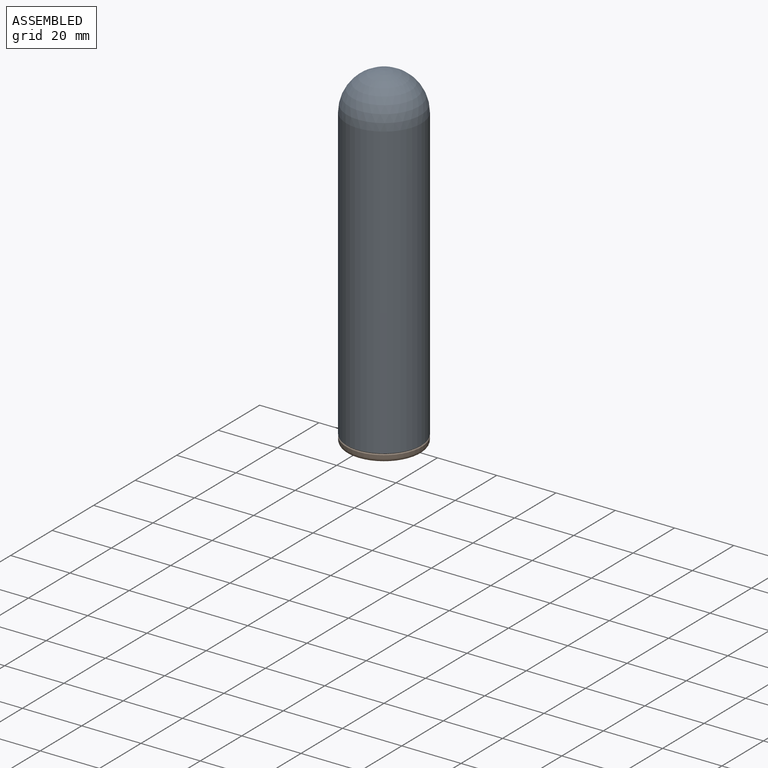
[diagram: assembled view]
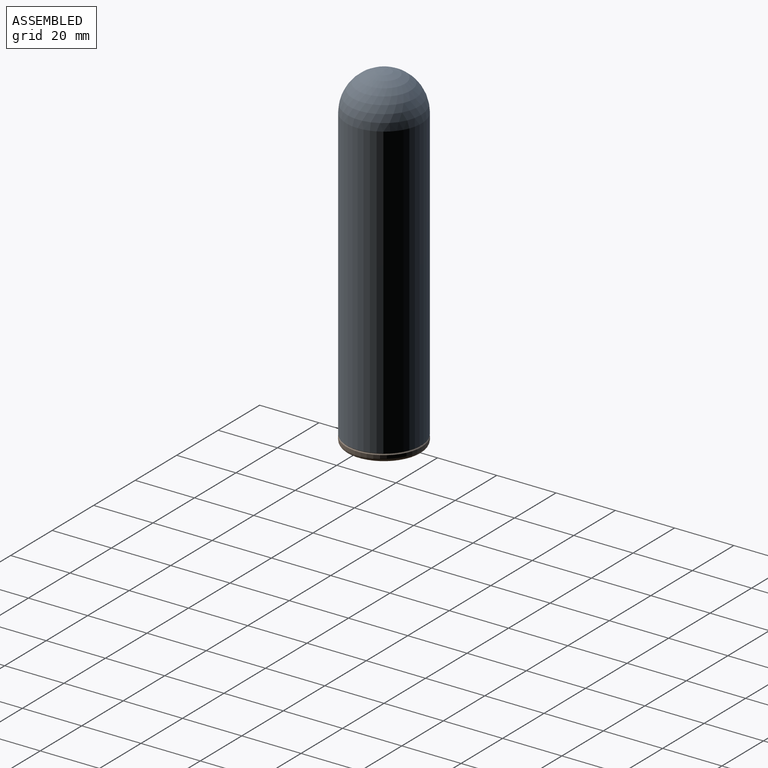
[diagram: assembled view, second angle]
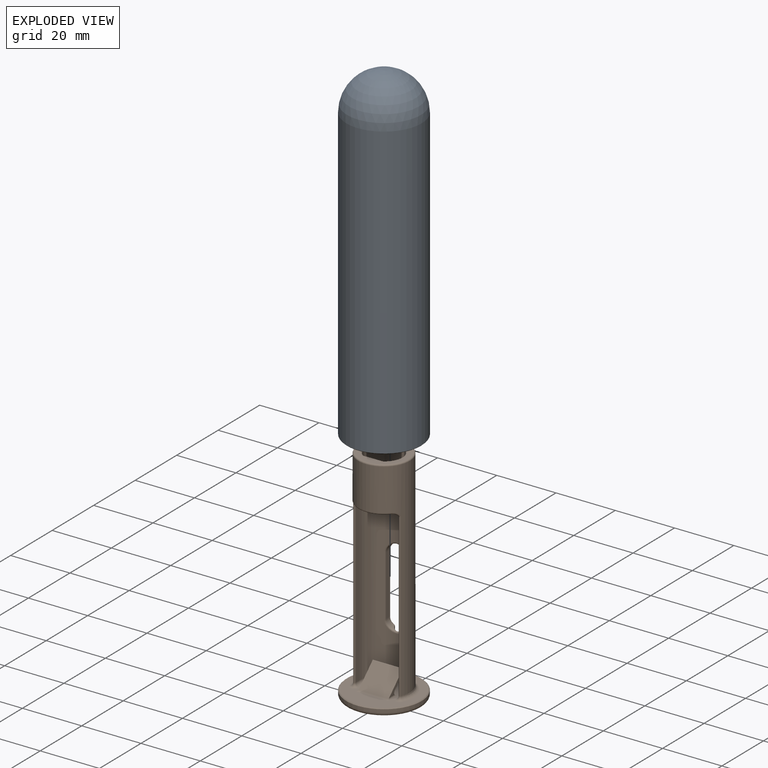
[diagram: exploded view]
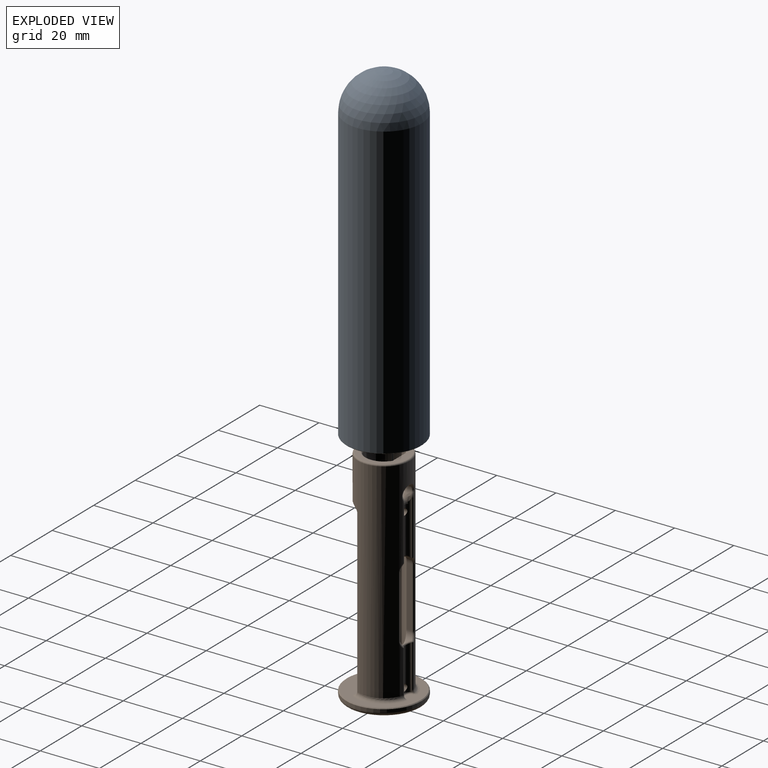
[diagram: exploded view, second angle]
ASSEMBLY  parts=2 mates=2
PART A: 8 faces, bbox 25.4x25.4x111.1 mm
  f0: cylinder r=12.7mm len=98.17mm, axis (0,0,-1), area 7833.7mm2, adj f4,f6
  f1: plane 24.89x24.89mm, normal (0,0,-1), area 162.3mm2, adj f5,f6
  f2: cylinder r=8.89mm len=92.08mm, axis (0,0,-1), area 5143.1mm2, adj f5,f7
  f3: plane 7.62x7.62mm, normal (0,0,-1), area 45.6mm2, adj f7
  f4: sphere r=12.7mm, area 1013.4mm2, adj f0
  f5: torus R=10.16mm, axis (0,0,1), area 117.2mm2, adj f1,f2
  f6: cone r=12.7mm half-angle=45deg, axis (0,0,1), area 28.4mm2, adj f0,f1
  f7: torus R=3.81mm, axis (0,0,1), area 353.2mm2, adj f2,f3
PART B: 104 faces, bbox 28x75.4x28 mm
  f0: plane 0.98x0.57mm, normal (0,0,1), area 0.3mm2, adj f35,f36,f96,f97
  f1: plane 8.51x6.62mm, normal (0,0,1), area 45.5mm2, adj f33,f35,f86,f99
  f2: cylinder r=8.7mm len=70.61mm, axis (0,1,0), area 2312.6mm2, adj f11,f12,f38,f46,f54,f55,f56,f60
  f3: cylinder r=3.17mm len=3.06mm, axis (0,0,1), area 6.1mm2, adj f13,f72,f79,f81
  f4: cylinder r=3.17mm len=3.06mm, axis (0,0,1), area 6.1mm2, adj f15,f68,f77,f80
  f5: plane 16.38x16.38mm, normal (0,1,0), area 85.7mm2, adj f83,f84,f85,f86,f87
  f6: cylinder r=2.05mm len=18.28mm, axis (0,1,0), area 76.8mm2, adj f17,f66,f67,f77,f90,f92,f94,f95
  f7: cylinder r=2.05mm len=15.12mm, axis (0,1,0), area 68.4mm2, adj f18,f57,f62,f63,f70,f71,f79
  f8: cylinder r=7.3mm len=54.61mm, axis (0,1,0), area 1059.3mm2, adj f9,f10,f17,f18,f41,f43,f48,f50
  f9: plane 54.61x1.79mm, normal (-1,0,0), area 97.8mm2, adj f8,f11,f40,f47
  f10: plane 54.61x1.79mm, normal (1,0,0), area 97.8mm2, adj f8,f12,f44,f51
  f11: cylinder r=0.38mm len=54.61mm, axis (0,1,0), area 57.2mm2, adj f2,f9,f39,f56
  f12: cylinder r=0.38mm len=54.61mm, axis (0,1,0), area 57.2mm2, adj f2,f10,f45,f54
  f13: plane 20.32x1.83mm, normal (-1,0,0), area 37.1mm2, adj f3,f14,f64,f82
  f14: cylinder r=3.17mm len=3.06mm, axis (0,0,1), area 6.1mm2, adj f13,f65,f77,f80
  f15: plane 20.32x1.83mm, normal (1,0,0), area 37.1mm2, adj f4,f16,f61,f78
  f16: cylinder r=3.17mm len=3.06mm, axis (0,0,1), area 6.1mm2, adj f15,f69,f79,f81
  f17: cylinder r=1.19mm len=2.39mm, axis (0,0,1), area 7.7mm2, adj f6,f8,f49
  f18: cylinder r=1.19mm len=2.39mm, axis (0,0,1), area 9mm2, adj f7,f8,f42
  f19: cylinder r=12.7mm len=25.4mm, axis (0,1,0), area 81.1mm2, adj f52,f53
  f20: plane 22.86x22.86mm, normal (0,-1,0), area 410.4mm2, adj f53
  f21: plane 25.38x25.38mm, normal (0,1,0), area 298mm2, adj f29,f30,f38,f39,f40,f41,f42,f43
  f22: plane 10.27x6.72mm, normal (0,0.72,0.7), area 94.9mm2, adj f24,f25,f28,f29,f88,f89
  f23: plane 10.16x4.45mm, normal (0,-0.72,-0.7), area 62.9mm2, adj f24,f25,f26,f30
  f24: plane 7.27x6.35mm, normal (1,0,0), area 9.4mm2, adj f22,f23,f26,f27,f28,f30,f88
  f25: plane 7.27x6.35mm, normal (-1,0,0), area 9.4mm2, adj f22,f23,f26,f27,f28,f30,f89
  f26: cylinder r=0.25mm len=10.16mm, axis (-1,0,0), area 4.1mm2, adj f23,f24,f25,f27
  f27: plane 10.16x0.37mm, normal (0,0.7,-0.72), area 5.2mm2, adj f24,f25,f26,f28
  f28: cylinder r=0.25mm len=10.16mm, axis (-1,0,0), area 4.1mm2, adj f22,f24,f25,f27
  f29: cylinder r=1.02mm len=11.18mm, axis (-1,0,0), area 8.4mm2, adj f21,f22,f88,f89
  f30: cylinder r=1.02mm len=11.18mm, axis (1,0,0), area 25mm2, adj f21,f23,f24,f25,f88,f89
  f31: plane 13.31x12.07mm, normal (0,-1,0), area 129.6mm2, adj f47,f48,f49,f50,f51,f55
  f32: plane 12.19x6.62mm, normal (0,0,-1), area 80.8mm2, adj f33,f35,f36,f83
  f33: cylinder r=6.03mm len=12.19mm, axis (0,1,0), area 145.6mm2, adj f1,f32,f34,f36,f85,f100
  f34: plane 0.87x0.53mm, normal (0,0,1), area 0.2mm2, adj f33,f36,f101,f103
  f35: cylinder r=6.03mm len=12.19mm, axis (0,1,0), area 145.6mm2, adj f0,f1,f32,f36,f84,f98
  f36: plane 12.16x10.48mm, normal (0,1,0), area 105.5mm2, adj f0,f32,f33,f34,f35,f94,f96,f103
  f37: cylinder r=2.33mm len=4.66mm, axis (0,0,1), area 15.3mm2, adj f60,f90,f92,f97,f98,f99,f100,f101
  f38: torus R=9.97mm, axis (0,-1,0), area 30.7mm2, adj f2,f21,f39,f63
  f39: torus R=1.65mm, axis (0,-1,0), area 4.6mm2, adj f11,f21,f38,f40
  f40: cylinder r=1.27mm len=1.79mm, axis (0,0,1), area 3.6mm2, adj f9,f21,f39,f41
  f41: torus R=6.03mm, axis (0,-1,0), area 19.9mm2, adj f8,f21,f40,f42
  f42: bspline ~1.88x1.39mm, area 2.8mm2, adj f18,f21,f41,f43
  f43: torus R=6.03mm, axis (0,-1,0), area 19.9mm2, adj f8,f21,f42,f44
  f44: cylinder r=1.27mm len=1.79mm, axis (0,0,-1), area 3.6mm2, adj f10,f21,f43,f45
  f45: torus R=1.65mm, axis (0,-1,0), area 4.6mm2, adj f12,f21,f44,f46
  f46: torus R=9.97mm, axis (0,-1,0), area 30.7mm2, adj f2,f21,f45,f62
  f47: cylinder r=1.27mm len=4.14mm, axis (0,0,1), area 5.9mm2, adj f9,f31,f48,f56
  f48: torus R=6.03mm, axis (0,1,0), area 19.2mm2, adj f8,f31,f47,f49
  f49: bspline ~2.54x1.37mm, area 2.9mm2, adj f17,f31,f48,f50
  f50: torus R=6.03mm, axis (0,1,0), area 19.2mm2, adj f8,f31,f49,f51
  f51: cylinder r=1.27mm len=4.14mm, axis (0,0,-1), area 5.9mm2, adj f10,f31,f50,f54
  f52: cone r=12.7mm half-angle=45deg, axis (0,-1,0), area 28.4mm2, adj f19,f21
  f53: torus R=11.43mm, axis (0,-1,0), area 153.4mm2, adj f19,f20
  f54: bspline ~2.7x2.25mm, area 3mm2, adj f2,f12,f51,f55
  f55: torus R=8.19mm, axis (0,1,0), area 11.2mm2, adj f2,f31,f54,f56
  f56: bspline ~2.7x2.25mm, area 3mm2, adj f2,f11,f47,f55
  f57: torus R=1.54mm, axis (0,-1,0), area 3.8mm2, adj f7,f21,f58,f59
  f58: bspline ~1.55x0.89mm, area 0.4mm2, adj f21,f57,f62
  f59: bspline ~1.7x0.94mm, area 0.4mm2, adj f21,f57,f63
  f60: bspline ~6.04x4.49mm, area 9.1mm2, adj f2,f37,f91,f93
  f61: cylinder r=0.51mm len=20.32mm, axis (0,1,0), area 21mm2, adj f2,f15,f68,f69
  f62: bspline ~2.18x1.91mm, area 1.2mm2, adj f7,f46,f58,f70
  f63: bspline ~2.18x1.91mm, area 1.2mm2, adj f7,f38,f59,f71
  f64: cylinder r=0.51mm len=20.32mm, axis (0,1,0), area 21mm2, adj f2,f13,f65,f72
  f65: bspline ~3.21x2.08mm, area 2.9mm2, adj f2,f14,f64,f73
  f66: cylinder r=0.51mm len=18.19mm, axis (0,-1,0), area 14.1mm2, adj f2,f6,f73,f91
  f67: cylinder r=0.51mm len=18.28mm, axis (0,-1,0), area 14.1mm2, adj f2,f6,f74,f93
  f68: bspline ~3.21x2.08mm, area 2.9mm2, adj f2,f4,f61,f74
  f69: bspline ~3.21x2.08mm, area 2.9mm2, adj f2,f16,f61,f75
  f70: cylinder r=0.51mm len=14.35mm, axis (0,-1,0), area 11.1mm2, adj f2,f7,f62,f75
  f71: cylinder r=0.51mm len=14.35mm, axis (0,-1,0), area 11.1mm2, adj f2,f7,f63,f76
  f72: bspline ~3.21x2.08mm, area 2.9mm2, adj f2,f3,f64,f76
  f73: sphere r=0.51mm, area 0.3mm2, adj f65,f66,f77
  f74: sphere r=0.51mm, area 0.2mm2, adj f67,f68,f77
  f75: sphere r=0.51mm, area 0.2mm2, adj f69,f70,f79
  f76: sphere r=0.51mm, area 0.2mm2, adj f71,f72,f79
  f77: bspline ~4.34x2.21mm, area 3.6mm2, adj f4,f6,f14,f73,f74,f80
  f78: cylinder r=0.51mm len=20.32mm, axis (0,1,0), area 11.1mm2, adj f8,f15,f80,f81
  f79: bspline ~4.33x2.19mm, area 3.6mm2, adj f3,f7,f16,f75,f76,f81
  f80: bspline ~6.89x4.46mm, area 7.1mm2, adj f4,f8,f14,f77,f78,f82
  f81: bspline ~6.89x4.46mm, area 7.1mm2, adj f3,f8,f16,f78,f79,f82
  f82: cylinder r=0.51mm len=20.32mm, axis (0,1,0), area 11.1mm2, adj f8,f13,f80,f81
  f83: cylinder r=0.51mm len=6.92mm, axis (-1,0,0), area 5.4mm2, adj f5,f32,f84,f85
  f84: torus R=6.54mm, axis (0,1,0), area 9.9mm2, adj f5,f35,f83,f86
  f85: torus R=6.54mm, axis (0,1,0), area 9.9mm2, adj f5,f33,f83,f86
  f86: cylinder r=0.51mm len=6.92mm, axis (1,0,0), area 5.4mm2, adj f1,f5,f84,f85
  f87: torus R=8.19mm, axis (0,1,0), area 42.7mm2, adj f2,f5
  f88: cylinder r=0.51mm len=4.38mm, axis (0,0,1), area 2.8mm2, adj f21,f22,f24,f29,f30
  f89: cylinder r=0.51mm len=4.38mm, axis (0,0,-1), area 2.8mm2, adj f21,f22,f25,f29,f30
  f90: bspline ~3.25x3.05mm, area 2.8mm2, adj f6,f37,f91,f103
  f91: bspline ~2.5x1mm, area 1.2mm2, adj f2,f60,f66,f90
  f92: bspline ~3.22x3.07mm, area 2.8mm2, adj f6,f37,f93,f96
  f93: bspline ~1.81x0.88mm, area 1.1mm2, adj f2,f60,f67,f92
  f94: torus R=3.82mm, axis (0,1,0), area 7.7mm2, adj f6,f36,f95,f96,f102,f103
  f95: cylinder r=1.27mm len=0.44mm, axis (0,1,0), area 0.1mm2, adj f6,f94,f96
  f96: bspline ~4.08x3.09mm, area 2.7mm2, adj f0,f36,f92,f94,f95,f97
  f97: torus R=3.6mm, axis (0,0,1), area 1.4mm2, adj f0,f37,f96,f98
  f98: bspline ~3.35x1.42mm, area 3.8mm2, adj f35,f37,f97,f99
  f99: torus R=3.6mm, axis (0,0,1), area 13mm2, adj f1,f37,f98,f100
  f100: bspline ~3.44x1.41mm, area 4mm2, adj f33,f37,f99,f101
  f101: torus R=3.6mm, axis (0,0,1), area 1.3mm2, adj f34,f37,f100,f103
  f102: cylinder r=1.27mm len=0.4mm, axis (0,1,0), area 0.1mm2, adj f6,f94,f103
  f103: bspline ~4.02x2.96mm, area 2.6mm2, adj f34,f36,f90,f94,f101,f102
PLACE A t=(0,0,50.1)mm
PLACE B rot(axis=(1,0,0),90deg) t=(0,0,107.25)mm
MATE planar B.f21 <-> A.f0  axis (0,0,1) through (0,-0.88,50.1)mm
MATE slider B.f19 <-> A.f0  axis (0,0,1) through (0,0,49.34)mm
